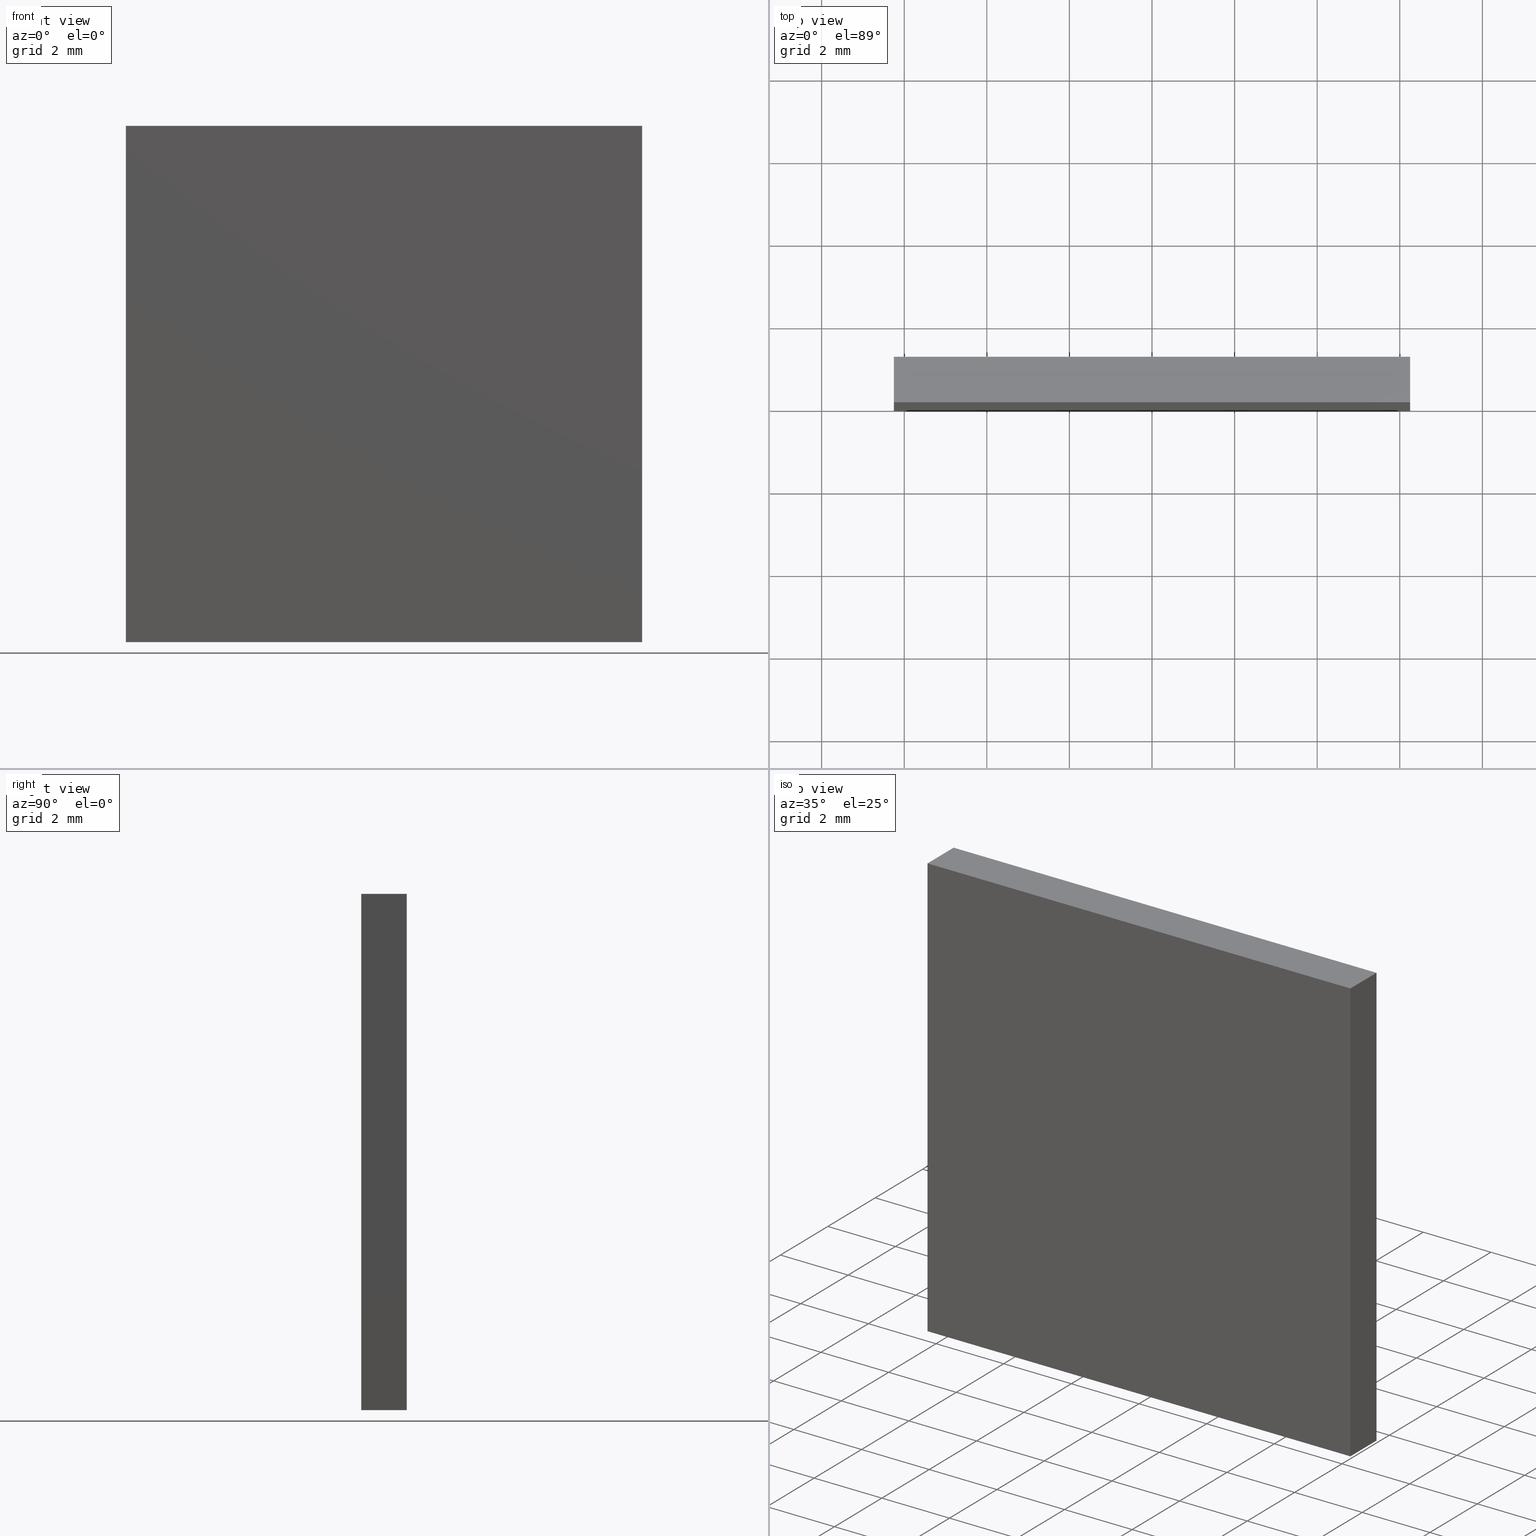
[diagram: canonical four-view strip — front | top / right | iso, engineering-drawing reading convention]
A machine part, canonical four-view strip (front | top / right | iso — engineering-drawing reading convention). The complete STEP part file that produces these views, byte-faithful:
ISO-10303-21;
HEADER;
FILE_DESCRIPTION (( 'STEP AP214' ),
    '1' );
FILE_NAME ('258501.STEP',
    '2019-08-06T08:44:34',
    ( 'user' ),
    ( '΢���й�' ),
    'SwSTEP 2.0',
    'SolidWorks 2016',
    '' );
FILE_SCHEMA (( 'AUTOMOTIVE_DESIGN' ));
ENDSEC;

DATA;
#1 = CARTESIAN_POINT ( 'NONE',  ( 6.249999999999999100, 1.100000000000000100, 6.249999999999998200 ) ) ;
#2 = ORIENTED_EDGE ( 'NONE', *, *, #161, .F. ) ;
#3 = FACE_OUTER_BOUND ( 'NONE', #133, .T. ) ;
#4 = STYLED_ITEM ( 'NONE', ( #115 ), #68 ) ;
#5 = VERTEX_POINT ( 'NONE', #49 ) ;
#6 = CARTESIAN_POINT ( 'NONE',  ( 6.249999999999999100, 0.0000000000000000000, 6.249999999999998200 ) ) ;
#7 = ORIENTED_EDGE ( 'NONE', *, *, #35, .T. ) ;
#8 = SHAPE_DEFINITION_REPRESENTATION ( #56, #68 ) ;
#9 = CARTESIAN_POINT ( 'NONE',  ( -6.250000000000002700, 0.0000000000000000000, -6.250000000000001800 ) ) ;
#10 = EDGE_CURVE ( 'NONE', #31, #86, #121, .T. ) ;
#11 = CARTESIAN_POINT ( 'NONE',  ( -6.250000000000002700, 1.100000000000000100, -6.250000000000001800 ) ) ;
#12 = CARTESIAN_POINT ( 'NONE',  ( 0.0000000000000000000, 0.0000000000000000000, 0.0000000000000000000 ) ) ;
#13 = UNCERTAINTY_MEASURE_WITH_UNIT (LENGTH_MEASURE( 1.000000000000000100E-005 ), #122, 'distance_accuracy_value', 'NONE');
#14 = CARTESIAN_POINT ( 'NONE',  ( -6.250000000000000900, 0.0000000000000000000, 6.249999999999998200 ) ) ;
#15 = FILL_AREA_STYLE ('',( #45 ) ) ;
#16 = ORIENTED_EDGE ( 'NONE', *, *, #35, .F. ) ;
#17 = VECTOR ( 'NONE', #176, 1000.000000000000000 ) ;
#18 = FILL_AREA_STYLE_COLOUR ( '', #22 ) ;
#19 = CARTESIAN_POINT ( 'NONE',  ( -6.250000000000002700, 1.100000000000000100, -6.250000000000001800 ) ) ;
#20 = ADVANCED_FACE ( 'NONE', ( #3 ), #173, .F. ) ;
#21 = ORIENTED_EDGE ( 'NONE', *, *, #192, .F. ) ;
#22 = COLOUR_RGB ( '',1.000000000000000000, 1.000000000000000000, 1.000000000000000000 ) ;
#23 = PRODUCT ( '258501', '258501', '', ( #159 ) ) ;
#24 = LINE ( 'NONE', #166, #47 ) ;
#25 = VERTEX_POINT ( 'NONE', #94 ) ;
#26 = VECTOR ( 'NONE', #137, 1000.000000000000000 ) ;
#27 = DIRECTION ( 'NONE',  ( 1.387778780781445700E-016, 0.0000000000000000000, 1.000000000000000000 ) ) ;
#28 = COLOUR_RGB ( '',1.000000000000000000, 1.000000000000000000, 1.000000000000000000 ) ;
#29 = ORIENTED_EDGE ( 'NONE', *, *, #126, .T. ) ;
#30 = EDGE_CURVE ( 'NONE', #100, #86, #78, .T. ) ;
#31 = VERTEX_POINT ( 'NONE', #6 ) ;
#32 = DIRECTION ( 'NONE',  ( 0.0000000000000000000, -0.0000000000000000000, 1.000000000000000000 ) ) ;
#33 = DIRECTION ( 'NONE',  ( 0.0000000000000000000, 0.0000000000000000000, -1.000000000000000000 ) ) ;
#34 = DIRECTION ( 'NONE',  ( 1.000000000000000000, 0.0000000000000000000, 0.0000000000000000000 ) ) ;
#35 = EDGE_CURVE ( 'NONE', #69, #5, #64, .T. ) ;
#36 = EDGE_LOOP ( 'NONE', ( #52, #83, #154, #29 ) ) ;
#37 = ORIENTED_EDGE ( 'NONE', *, *, #10, .T. ) ;
#38 = ORIENTED_EDGE ( 'NONE', *, *, #10, .F. ) ;
#39 = ORIENTED_EDGE ( 'NONE', *, *, #30, .T. ) ;
#40 = CARTESIAN_POINT ( 'NONE',  ( -6.250000000000002700, 1.100000000000000100, -6.250000000000001800 ) ) ;
#41 = LINE ( 'NONE', #11, #104 ) ;
#42 = CARTESIAN_POINT ( 'NONE',  ( 6.249999999999997300, 0.0000000000000000000, -6.250000000000001800 ) ) ;
#43 = EDGE_CURVE ( 'NONE', #118, #31, #24, .T. ) ;
#44 =( LENGTH_UNIT ( ) NAMED_UNIT ( * ) SI_UNIT ( .MILLI., .METRE. ) );
#45 = FILL_AREA_STYLE_COLOUR ( '', #28 ) ;
#46 = CARTESIAN_POINT ( 'NONE',  ( -6.250000000000000900, 1.100000000000000100, 6.249999999999998200 ) ) ;
#47 = VECTOR ( 'NONE', #134, 1000.000000000000000 ) ;
#48 = APPLICATION_CONTEXT ( 'automotive_design' ) ;
#49 = CARTESIAN_POINT ( 'NONE',  ( -6.250000000000000900, 0.0000000000000000000, 6.249999999999998200 ) ) ;
#50 = CARTESIAN_POINT ( 'NONE',  ( -6.250000000000002700, 0.0000000000000000000, -6.250000000000001800 ) ) ;
#51 = SURFACE_STYLE_FILL_AREA ( #15 ) ;
#52 = ORIENTED_EDGE ( 'NONE', *, *, #183, .T. ) ;
#53 = VECTOR ( 'NONE', #186, 1000.000000000000000 ) ;
#54 = DIRECTION ( 'NONE',  ( -0.0000000000000000000, -1.000000000000000000, -0.0000000000000000000 ) ) ;
#55 = FACE_OUTER_BOUND ( 'NONE', #180, .T. ) ;
#56 = PRODUCT_DEFINITION_SHAPE ( 'NONE', 'NONE',  #130 ) ;
#57 = DIRECTION ( 'NONE',  ( 0.0000000000000000000, -0.0000000000000000000, 1.000000000000000000 ) ) ;
#58 = CARTESIAN_POINT ( 'NONE',  ( -6.250000000000002700, 1.100000000000000100, -6.250000000000001800 ) ) ;
#59 = ORIENTED_EDGE ( 'NONE', *, *, #197, .T. ) ;
#60 = CARTESIAN_POINT ( 'NONE',  ( 0.0000000000000000000, 0.0000000000000000000, 0.0000000000000000000 ) ) ;
#61 =( NAMED_UNIT ( * ) PLANE_ANGLE_UNIT ( ) SI_UNIT ( $, .RADIAN. ) );
#62 = FACE_OUTER_BOUND ( 'NONE', #149, .T. ) ;
#63 = DIRECTION ( 'NONE',  ( 0.0000000000000000000, 0.0000000000000000000, 1.000000000000000000 ) ) ;
#64 = LINE ( 'NONE', #70, #112 ) ;
#65 = EDGE_LOOP ( 'NONE', ( #59, #194, #163, #193 ) ) ;
#66 = EDGE_CURVE ( 'NONE', #100, #25, #184, .T. ) ;
#67 = ORIENTED_EDGE ( 'NONE', *, *, #84, .T. ) ;
#68 = ADVANCED_BREP_SHAPE_REPRESENTATION ( '258501', ( #178, #140 ), #132 ) ;
#69 = VERTEX_POINT ( 'NONE', #9 ) ;
#70 = CARTESIAN_POINT ( 'NONE',  ( -6.250000000000002700, 0.0000000000000000000, -6.250000000000001800 ) ) ;
#71 = CARTESIAN_POINT ( 'NONE',  ( 0.0000000000000000000, 1.100000000000000100, 0.0000000000000000000 ) ) ;
#72 = ORIENTED_EDGE ( 'NONE', *, *, #84, .F. ) ;
#73 = ORIENTED_EDGE ( 'NONE', *, *, #30, .F. ) ;
#74 =( NAMED_UNIT ( * ) SI_UNIT ( $, .STERADIAN. ) SOLID_ANGLE_UNIT ( ) );
#75 = PLANE ( 'NONE',  #191 ) ;
#76 = MECHANICAL_DESIGN_GEOMETRIC_PRESENTATION_REPRESENTATION (  '', ( #101 ), #85 ) ;
#77 = SURFACE_SIDE_STYLE ('',( #109 ) ) ;
#78 = LINE ( 'NONE', #182, #165 ) ;
#79 = DIRECTION ( 'NONE',  ( 1.000000000000000000, 0.0000000000000000000, -0.0000000000000000000 ) ) ;
#80 = AXIS2_PLACEMENT_3D ( 'NONE', #71, #151, #57 ) ;
#81 = ADVANCED_FACE ( 'NONE', ( #145 ), #135, .T. ) ;
#82 = MECHANICAL_DESIGN_GEOMETRIC_PRESENTATION_REPRESENTATION (  '', ( #4 ), #167 ) ;
#83 = ORIENTED_EDGE ( 'NONE', *, *, #66, .T. ) ;
#84 = EDGE_CURVE ( 'NONE', #25, #69, #41, .T. ) ;
#85 =( GEOMETRIC_REPRESENTATION_CONTEXT ( 3 ) GLOBAL_UNCERTAINTY_ASSIGNED_CONTEXT ( ( #106 ) ) GLOBAL_UNIT_ASSIGNED_CONTEXT ( ( #44, #169, #74 ) ) REPRESENTATION_CONTEXT ( 'NONE', 'WORKASPACE' ) );
#86 = VERTEX_POINT ( 'NONE', #42 ) ;
#87 = PRODUCT_RELATED_PRODUCT_CATEGORY ( 'part', '', ( #23 ) ) ;
#88 = SURFACE_SIDE_STYLE ('',( #51 ) ) ;
#89 = DIRECTION ( 'NONE',  ( 1.387778780781445700E-016, 0.0000000000000000000, 1.000000000000000000 ) ) ;
#90 = EDGE_LOOP ( 'NONE', ( #171, #72, #190, #39 ) ) ;
#91 = EDGE_CURVE ( 'NONE', #86, #69, #162, .T. ) ;
#92 = PRESENTATION_STYLE_ASSIGNMENT (( #198 ) ) ;
#93 =( NAMED_UNIT ( * ) PLANE_ANGLE_UNIT ( ) SI_UNIT ( $, .RADIAN. ) );
#94 = CARTESIAN_POINT ( 'NONE',  ( -6.250000000000002700, 1.100000000000000100, -6.250000000000001800 ) ) ;
#95 = AXIS2_PLACEMENT_3D ( 'NONE', #125, #156, #89 ) ;
#96 = AXIS2_PLACEMENT_3D ( 'NONE', #46, #33, #139 ) ;
#97 = PRESENTATION_LAYER_ASSIGNMENT (  '', '', ( #101 ) ) ;
#98 = LINE ( 'NONE', #189, #17 ) ;
#99 = FACE_OUTER_BOUND ( 'NONE', #90, .T. ) ;
#100 = VERTEX_POINT ( 'NONE', #146 ) ;
#101 = STYLED_ITEM ( 'NONE', ( #92 ), #178 ) ;
#102 = DIRECTION ( 'NONE',  ( 1.000000000000000000, 0.0000000000000000000, -1.387778780781445700E-016 ) ) ;
#103 = AXIS2_PLACEMENT_3D ( 'NONE', #19, #63, #79 ) ;
#104 = VECTOR ( 'NONE', #105, 1000.000000000000000 ) ;
#105 = DIRECTION ( 'NONE',  ( -0.0000000000000000000, -1.000000000000000000, -0.0000000000000000000 ) ) ;
#106 = UNCERTAINTY_MEASURE_WITH_UNIT (LENGTH_MEASURE( 1.000000000000000100E-005 ), #44, 'distance_accuracy_value', 'NONE');
#107 = ORIENTED_EDGE ( 'NONE', *, *, #197, .F. ) ;
#108 = CARTESIAN_POINT ( 'NONE',  ( 6.249999999999997300, 1.100000000000000100, -6.250000000000001800 ) ) ;
#109 = SURFACE_STYLE_FILL_AREA ( #128 ) ;
#110 = UNCERTAINTY_MEASURE_WITH_UNIT (LENGTH_MEASURE( 1.000000000000000100E-005 ), #111, 'distance_accuracy_value', 'NONE');
#111 =( LENGTH_UNIT ( ) NAMED_UNIT ( * ) SI_UNIT ( .MILLI., .METRE. ) );
#112 = VECTOR ( 'NONE', #27, 1000.000000000000000 ) ;
#113 = ADVANCED_FACE ( 'NONE', ( #99 ), #116, .F. ) ;
#114 = APPLICATION_CONTEXT ( 'automotive_design' ) ;
#115 = PRESENTATION_STYLE_ASSIGNMENT (( #141 ) ) ;
#116 = PLANE ( 'NONE',  #103 ) ;
#117 = CARTESIAN_POINT ( 'NONE',  ( -6.250000000000002700, 1.100000000000000100, -6.250000000000001800 ) ) ;
#118 = VERTEX_POINT ( 'NONE', #1 ) ;
#119 = ORIENTED_EDGE ( 'NONE', *, *, #91, .F. ) ;
#120 = PRODUCT_DEFINITION_FORMATION_WITH_SPECIFIED_SOURCE ( '�κ�', '', #23, .NOT_KNOWN. ) ;
#121 = LINE ( 'NONE', #153, #200 ) ;
#122 =( LENGTH_UNIT ( ) NAMED_UNIT ( * ) SI_UNIT ( .MILLI., .METRE. ) );
#123 = DIRECTION ( 'NONE',  ( 1.000000000000000000, 0.0000000000000000000, 0.0000000000000000000 ) ) ;
#124 = DIRECTION ( 'NONE',  ( 0.0000000000000000000, 1.000000000000000000, 0.0000000000000000000 ) ) ;
#125 = CARTESIAN_POINT ( 'NONE',  ( 6.249999999999997300, 1.100000000000000100, -6.250000000000001800 ) ) ;
#126 = EDGE_CURVE ( 'NONE', #158, #118, #98, .T. ) ;
#127 =( NAMED_UNIT ( * ) SI_UNIT ( $, .STERADIAN. ) SOLID_ANGLE_UNIT ( ) );
#128 = FILL_AREA_STYLE ('',( #18 ) ) ;
#129 = DIRECTION ( 'NONE',  ( -1.000000000000000000, -0.0000000000000000000, -0.0000000000000000000 ) ) ;
#130 = PRODUCT_DEFINITION ( 'δ֪', '', #120, #175 ) ;
#131 = VECTOR ( 'NONE', #129, 1000.000000000000000 ) ;
#132 =( GEOMETRIC_REPRESENTATION_CONTEXT ( 3 ) GLOBAL_UNCERTAINTY_ASSIGNED_CONTEXT ( ( #13 ) ) GLOBAL_UNIT_ASSIGNED_CONTEXT ( ( #122, #61, #201 ) ) REPRESENTATION_CONTEXT ( 'NONE', 'WORKASPACE' ) );
#133 = EDGE_LOOP ( 'NONE', ( #7, #2, #21, #67 ) ) ;
#134 = DIRECTION ( 'NONE',  ( -0.0000000000000000000, -1.000000000000000000, -0.0000000000000000000 ) ) ;
#135 = PLANE ( 'NONE',  #80 ) ;
#136 = LINE ( 'NONE', #170, #179 ) ;
#137 = DIRECTION ( 'NONE',  ( 1.387778780781445700E-016, 0.0000000000000000000, 1.000000000000000000 ) ) ;
#138 = DIRECTION ( 'NONE',  ( -0.0000000000000000000, -1.000000000000000000, -0.0000000000000000000 ) ) ;
#139 = DIRECTION ( 'NONE',  ( -1.000000000000000000, 0.0000000000000000000, -0.0000000000000000000 ) ) ;
#140 = AXIS2_PLACEMENT_3D ( 'NONE', #12, #143, #34 ) ;
#141 = SURFACE_STYLE_USAGE ( .BOTH. , #77 ) ;
#142 = FACE_OUTER_BOUND ( 'NONE', #65, .T. ) ;
#143 = DIRECTION ( 'NONE',  ( 0.0000000000000000000, 0.0000000000000000000, 1.000000000000000000 ) ) ;
#144 = DIRECTION ( 'NONE',  ( -1.387778780781445700E-016, -0.0000000000000000000, -1.000000000000000000 ) ) ;
#145 = FACE_OUTER_BOUND ( 'NONE', #36, .T. ) ;
#146 = CARTESIAN_POINT ( 'NONE',  ( 6.249999999999997300, 1.100000000000000100, -6.250000000000001800 ) ) ;
#147 = ADVANCED_FACE ( 'NONE', ( #142 ), #172, .F. ) ;
#148 = LINE ( 'NONE', #108, #53 ) ;
#149 = EDGE_LOOP ( 'NONE', ( #37, #73, #196, #155 ) ) ;
#150 = LINE ( 'NONE', #58, #26 ) ;
#151 = DIRECTION ( 'NONE',  ( 0.0000000000000000000, 1.000000000000000000, 0.0000000000000000000 ) ) ;
#152 = PRESENTATION_LAYER_ASSIGNMENT (  '', '', ( #4 ) ) ;
#153 = CARTESIAN_POINT ( 'NONE',  ( 6.249999999999997300, 0.0000000000000000000, -6.250000000000001800 ) ) ;
#154 = ORIENTED_EDGE ( 'NONE', *, *, #192, .T. ) ;
#155 = ORIENTED_EDGE ( 'NONE', *, *, #43, .T. ) ;
#156 = DIRECTION ( 'NONE',  ( -1.000000000000000000, 0.0000000000000000000, 1.387778780781445700E-016 ) ) ;
#157 = PLANE ( 'NONE',  #95 ) ;
#158 = VERTEX_POINT ( 'NONE', #199 ) ;
#159 = PRODUCT_CONTEXT ( 'NONE', #114, 'mechanical' ) ;
#160 = ADVANCED_FACE ( 'NONE', ( #62 ), #157, .F. ) ;
#161 = EDGE_CURVE ( 'NONE', #158, #5, #136, .T. ) ;
#162 = LINE ( 'NONE', #50, #131 ) ;
#163 = ORIENTED_EDGE ( 'NONE', *, *, #126, .F. ) ;
#164 = DIRECTION ( 'NONE',  ( -1.000000000000000000, -0.0000000000000000000, -0.0000000000000000000 ) ) ;
#165 = VECTOR ( 'NONE', #54, 1000.000000000000000 ) ;
#166 = CARTESIAN_POINT ( 'NONE',  ( 6.249999999999999100, 1.100000000000000100, 6.249999999999998200 ) ) ;
#167 =( GEOMETRIC_REPRESENTATION_CONTEXT ( 3 ) GLOBAL_UNCERTAINTY_ASSIGNED_CONTEXT ( ( #110 ) ) GLOBAL_UNIT_ASSIGNED_CONTEXT ( ( #111, #93, #127 ) ) REPRESENTATION_CONTEXT ( 'NONE', 'WORKASPACE' ) );
#168 = APPLICATION_PROTOCOL_DEFINITION ( 'draft international standard', 'automotive_design', 1998, #48 ) ;
#169 =( NAMED_UNIT ( * ) PLANE_ANGLE_UNIT ( ) SI_UNIT ( $, .RADIAN. ) );
#170 = CARTESIAN_POINT ( 'NONE',  ( -6.250000000000000900, 1.100000000000000100, 6.249999999999998200 ) ) ;
#171 = ORIENTED_EDGE ( 'NONE', *, *, #91, .T. ) ;
#172 = PLANE ( 'NONE',  #96 ) ;
#173 = PLANE ( 'NONE',  #177 ) ;
#174 = ADVANCED_FACE ( 'NONE', ( #55 ), #75, .F. ) ;
#175 = PRODUCT_DEFINITION_CONTEXT ( 'detailed design', #48, 'design' ) ;
#176 = DIRECTION ( 'NONE',  ( 1.000000000000000000, 0.0000000000000000000, 0.0000000000000000000 ) ) ;
#177 = AXIS2_PLACEMENT_3D ( 'NONE', #117, #102, #195 ) ;
#178 = MANIFOLD_SOLID_BREP ( '͹̨-����1', #185 ) ;
#179 = VECTOR ( 'NONE', #138, 1000.000000000000000 ) ;
#180 = EDGE_LOOP ( 'NONE', ( #38, #107, #16, #119 ) ) ;
#181 = LINE ( 'NONE', #14, #187 ) ;
#182 = CARTESIAN_POINT ( 'NONE',  ( 6.249999999999997300, 1.100000000000000100, -6.250000000000001800 ) ) ;
#183 = EDGE_CURVE ( 'NONE', #118, #100, #148, .T. ) ;
#184 = LINE ( 'NONE', #40, #188 ) ;
#185 = CLOSED_SHELL ( 'NONE', ( #160, #113, #20, #147, #81, #174 ) ) ;
#186 = DIRECTION ( 'NONE',  ( -1.387778780781445700E-016, -0.0000000000000000000, -1.000000000000000000 ) ) ;
#187 = VECTOR ( 'NONE', #123, 1000.000000000000000 ) ;
#188 = VECTOR ( 'NONE', #164, 1000.000000000000000 ) ;
#189 = CARTESIAN_POINT ( 'NONE',  ( -6.250000000000000900, 1.100000000000000100, 6.249999999999998200 ) ) ;
#190 = ORIENTED_EDGE ( 'NONE', *, *, #66, .F. ) ;
#191 = AXIS2_PLACEMENT_3D ( 'NONE', #60, #124, #32 ) ;
#192 = EDGE_CURVE ( 'NONE', #25, #158, #150, .T. ) ;
#193 = ORIENTED_EDGE ( 'NONE', *, *, #161, .T. ) ;
#194 = ORIENTED_EDGE ( 'NONE', *, *, #43, .F. ) ;
#195 = DIRECTION ( 'NONE',  ( -1.387778780781445700E-016, 0.0000000000000000000, -1.000000000000000000 ) ) ;
#196 = ORIENTED_EDGE ( 'NONE', *, *, #183, .F. ) ;
#197 = EDGE_CURVE ( 'NONE', #5, #31, #181, .T. ) ;
#198 = SURFACE_STYLE_USAGE ( .BOTH. , #88 ) ;
#199 = CARTESIAN_POINT ( 'NONE',  ( -6.250000000000000900, 1.100000000000000100, 6.249999999999998200 ) ) ;
#200 = VECTOR ( 'NONE', #144, 1000.000000000000000 ) ;
#201 =( NAMED_UNIT ( * ) SI_UNIT ( $, .STERADIAN. ) SOLID_ANGLE_UNIT ( ) );
#202 = APPLICATION_PROTOCOL_DEFINITION ( 'draft international standard', 'automotive_design', 1998, #114 ) ;
ENDSEC;
END-ISO-10303-21;
